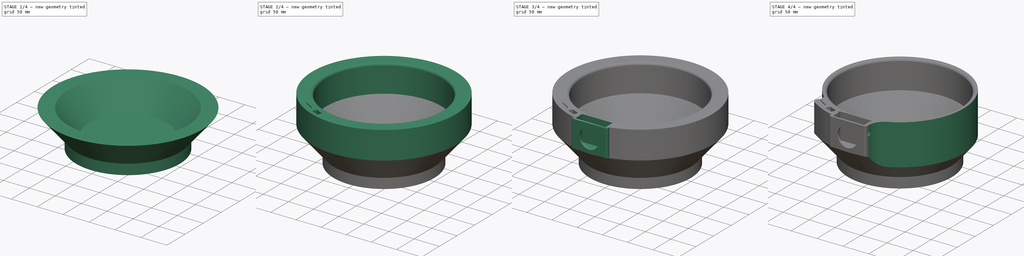
[diagram: build sequence overview — one tinted view per stage of 4, left to right]
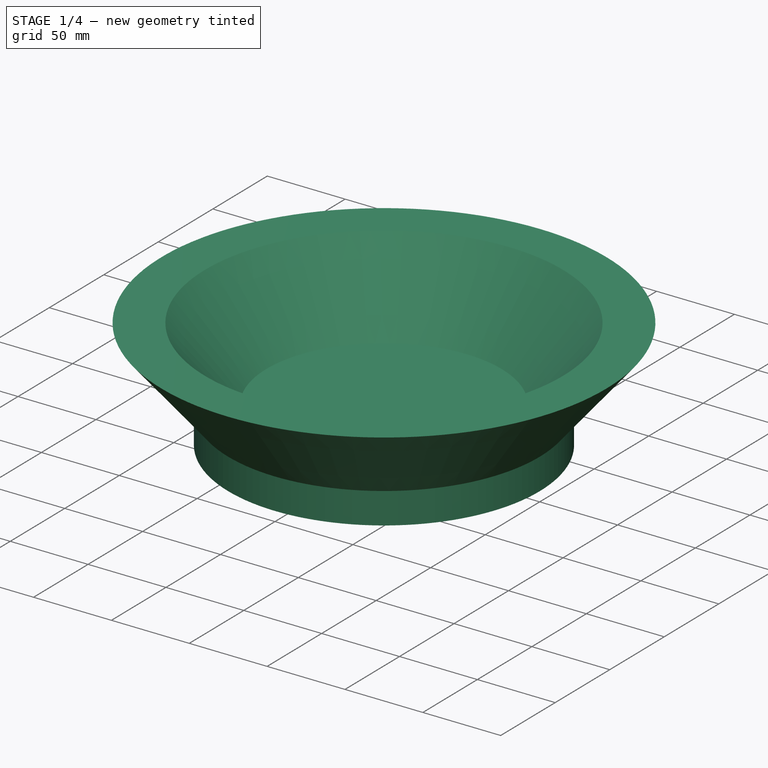
[diagram: stage 1 of 4 — iso view after this stage's code; geometry added in this stage tinted green]
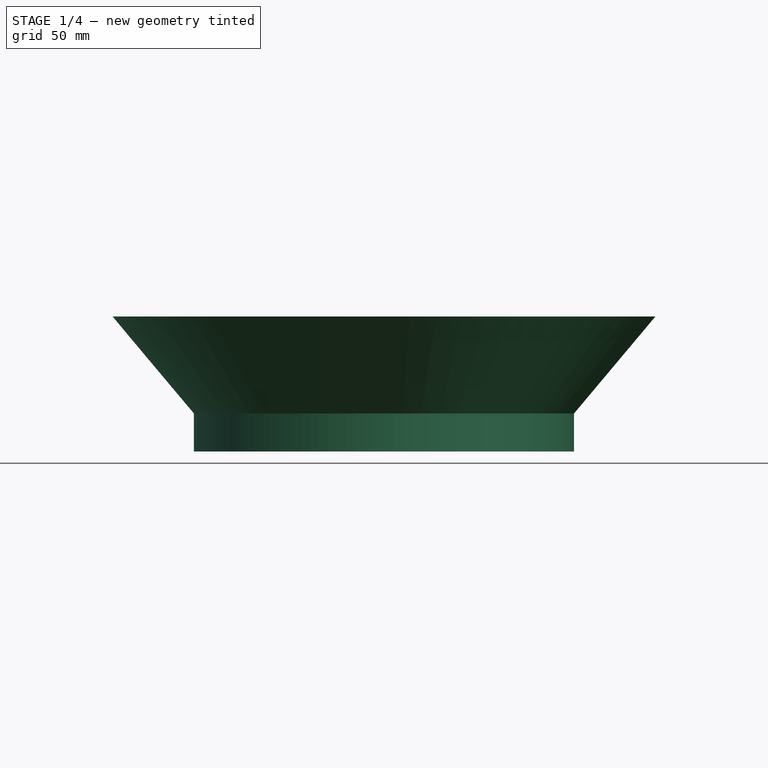
[diagram: stage 1 of 4 — front view after this stage's code; geometry added in this stage tinted green]
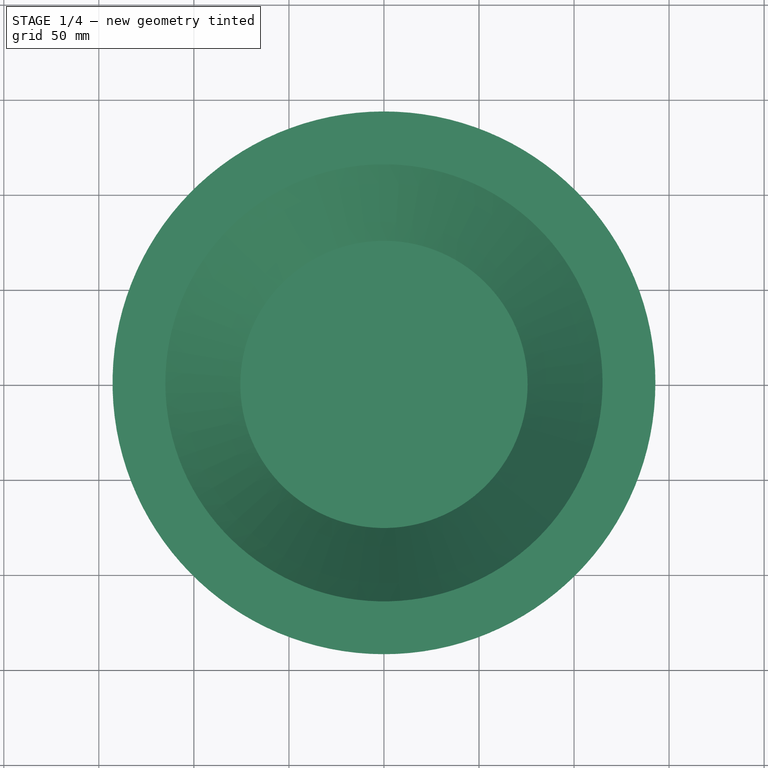
[diagram: stage 1 of 4 — top view after this stage's code; geometry added in this stage tinted green]
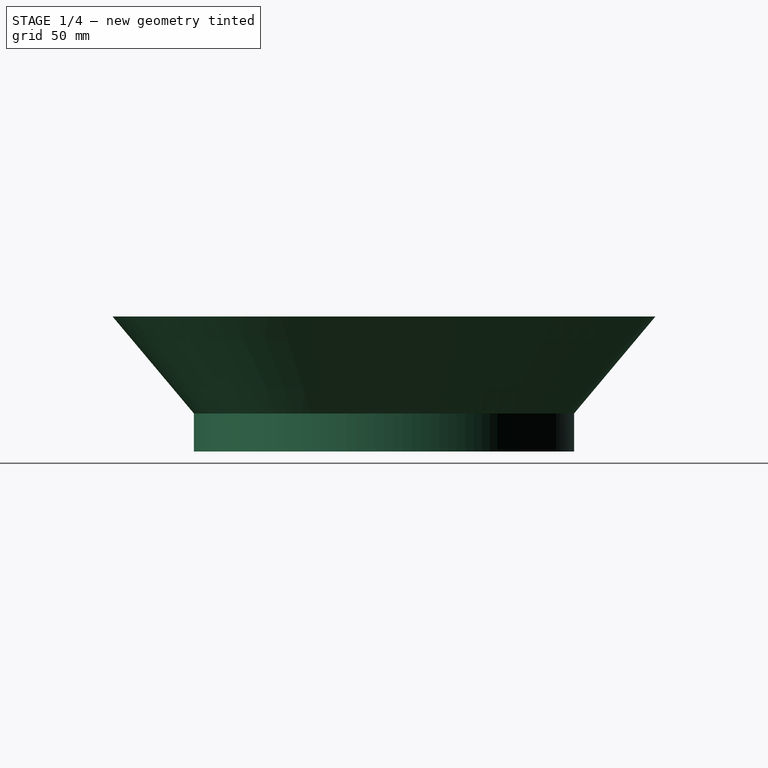
[diagram: stage 1 of 4 — right view after this stage's code; geometry added in this stage tinted green]
FCSTD DOCUMENT  (FreeCAD 1.1R44874 (Git))
Label: Base2
License: Creative Commons Attribution-NonCommercial 4.0
objects: Sketcher::SketchObject×10, PartDesign::Pad×6, PartDesign::Pocket×6, PartDesign::Fillet×1, PartDesign::Hole×1, App::Point×1, PartDesign::Body×1, Measure::MeasureDistance×1, App::DocumentObjectGroup×1
note: 63 computed .brp shape members not serialized (recipe doc carries the construction recipe); baked Part::Feature solids carry a one-line shape summary decoded from their .brp

FEATURE [Sketcher::SketchObject] Sketch
  ArcFitTolerance = 1e-06
  AttachmentSupport = -> [XY_Plane]
  ExternalTypes = [0]
  FullyConstrained = true
  MakeInternals = false
  MapMode = 2
  _ExternalGeoVersion = 0
  sketch-geometry (1):
    g0: Circle CenterX=0 CenterY=0 CenterZ=0 NormalX=0 NormalY=0 NormalZ=1 AngleXU=0 Radius=100
  constraints (2):
    c: Diameter(g0) = 200
    c: Coincident(g0,g-1)
FEATURE [PartDesign::Pad] Pad
  Direction = (0,0,1)
  Length = 20
  Length2 = 10
  Profile = -> Sketch
  ReferenceAxis = -> Sketch [N_Axis]
  Refine = true
  SideType = 0
  Suppressed = false
  Type = 0
  Type2 = 0
FEATURE [PartDesign::Pad] Pad001
  BaseFeature = -> Pad
  Direction = (-100,1.22e-14,0)
  Length = 20
  Length2 = 10
  Profile = -> Pad [Face1]
  Refine = true
  SideType = 0
  Suppressed = false
  Type = 0
  Type2 = 0
FEATURE [PartDesign::Pad] Pad002
  BaseFeature = -> Pad001
  Direction = (0,0,1)
  Length = 51
  Length2 = 10
  Profile = -> Pad001 [Vertex6,Edge6,Vertex5,Edge5,Vertex4,Edge7]
  Refine = true
  SideType = 0
  Suppressed = false
  TaperAngle = 40
  Type = 0
  Type2 = 0
FEATURE [Sketcher::SketchObject] Sketch001
  ArcFitTolerance = 1e-06
  AttachmentSupport = -> [Pad002]
  ExternalTypes = [0]
  FullyConstrained = true
  MakeInternals = false
  MapMode = 5
  Placement = pos=(0,0,71) rot=(0,0,1;0rad)
  _ExternalGeoVersion = 0
  sketch-geometry (1):
    g0: Circle CenterX=0 CenterY=0 CenterZ=0 NormalX=0 NormalY=0 NormalZ=1 AngleXU=0 Radius=115
  constraints (2):
    c: Diameter(g0) = 230
    c: Coincident(g0,g-1)
FEATURE [PartDesign::Pocket] Pocket
  BaseFeature = -> Pad002
  Direction = (0,0,-1)
  Length = 47
  Length2 = 5
  Profile = -> Sketch001
  ReferenceAxis = -> Sketch001 [N_Axis]
  Refine = true
  SideType = 0
  Suppressed = false
  TaperAngle = -40
  Type = 0
  Type2 = 0
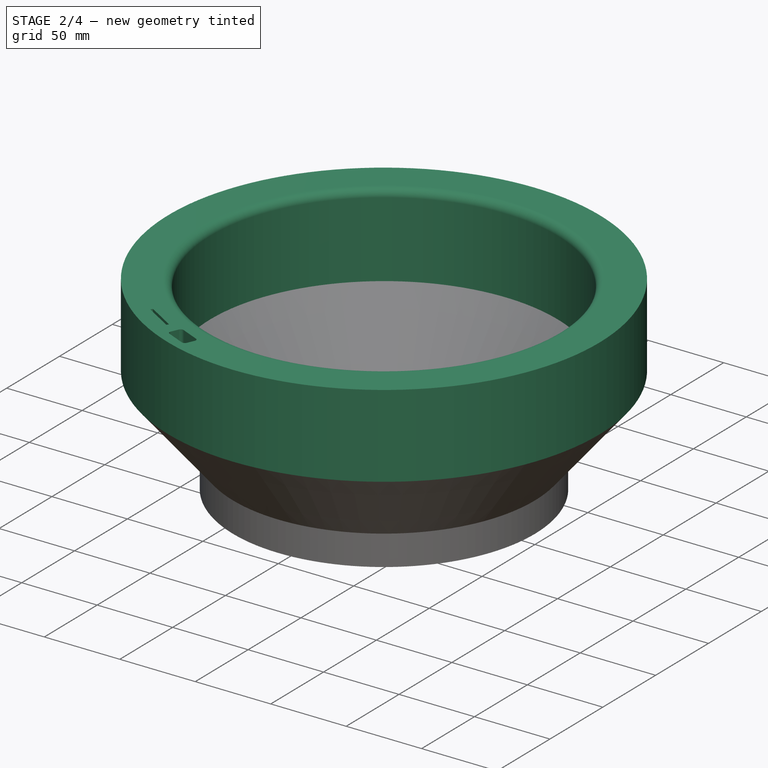
[diagram: stage 2 of 4 — iso view after this stage's code; geometry added in this stage tinted green]
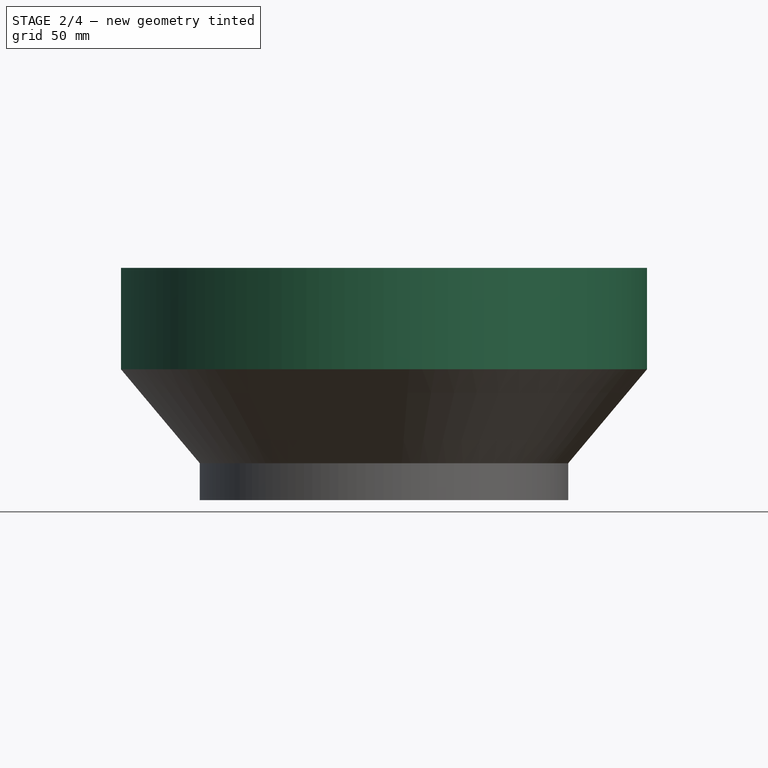
[diagram: stage 2 of 4 — front view after this stage's code; geometry added in this stage tinted green]
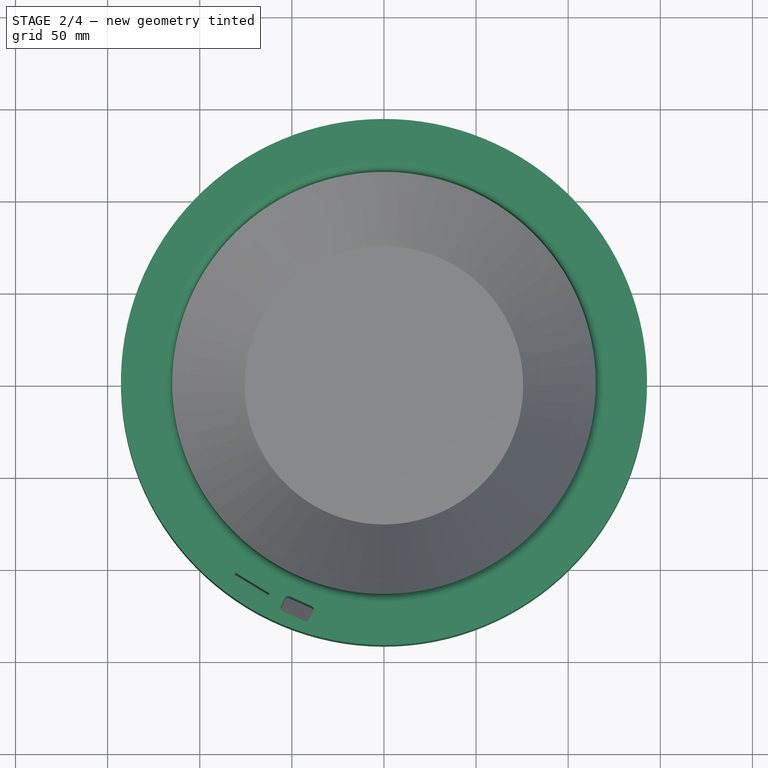
[diagram: stage 2 of 4 — top view after this stage's code; geometry added in this stage tinted green]
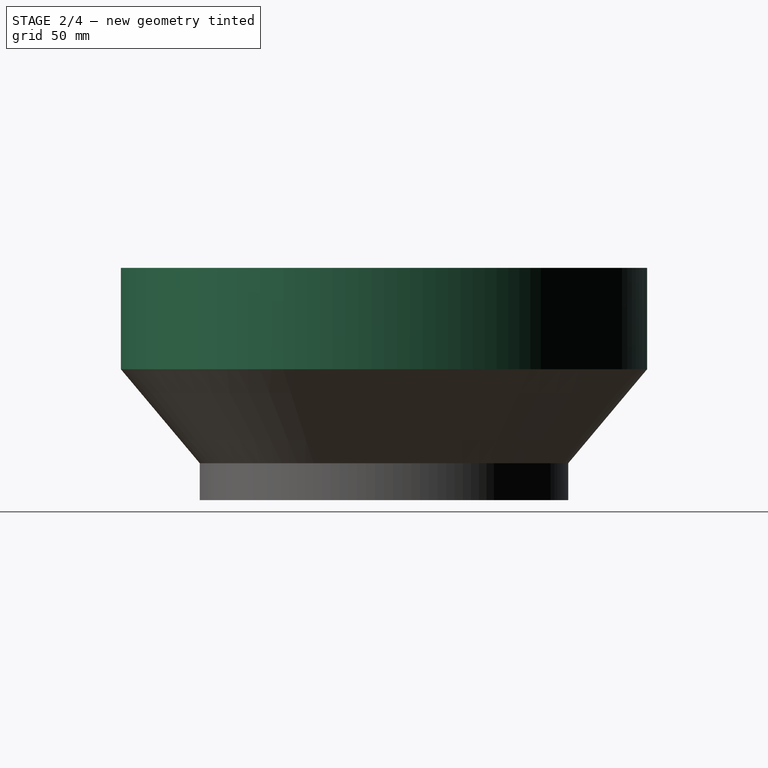
[diagram: stage 2 of 4 — right view after this stage's code; geometry added in this stage tinted green]
FEATURE [PartDesign::Pad] Pad003
  BaseFeature = -> Pocket
  Direction = (0,0,1)
  Length = 55
  Length2 = 10
  Profile = -> Pocket [Face6]
  Refine = true
  SideType = 0
  Suppressed = false
  Type = 0
  Type2 = 0
FEATURE [PartDesign::Fillet] Fillet
  Base = -> Pad003 [Edge18]
  BaseFeature = -> Pad003
  Radius = 5
  Refine = true
  SupportTransform = false
  Suppressed = false
  UseAllEdges = false
FEATURE [Sketcher::SketchObject] Sketch002
  ArcFitTolerance = 1e-06
  AttachmentSupport = -> [Fillet]
  ExternalTypes = [0]
  FullyConstrained = false
  MakeInternals = false
  MapMode = 5
  Placement = pos=(0,0,126) rot=(0,0,1;0rad)
  _ExternalGeoVersion = 0
  sketch-geometry (16):
    g0: LineSegment StartX=-81.3572 StartY=-104.942 StartZ=0 EndX=-62.8823 EndY=-116.133 EndZ=0
    g1: LineSegment StartX=-62.8823 StartY=-116.133 StartZ=0 EndX=-62.0249 EndY=-114.782 EndZ=0
    g2: LineSegment StartX=-62.0249 StartY=-114.782 StartZ=0 EndX=-80.4998 EndY=-103.591 EndZ=0
    g3: LineSegment StartX=-80.4998 StartY=-103.591 StartZ=0 EndX=-81.3572 EndY=-104.942 EndZ=0
    g4: GeomPoint [constr] X=-71.6911 Y=-109.862 Z=0
    g5: LineSegment StartX=-54.8822 StartY=-124.553 StartZ=0 EndX=-43.1209 EndY=-129.756 EndZ=0
    g6: LineSegment StartX=-40.4828 StartY=-128.736 StartZ=0 EndX=-38.4599 EndY=-124.163 EndZ=0
    g7: LineSegment StartX=-39.4798 StartY=-121.525 StartZ=0 EndX=-51.2411 EndY=-116.322 EndZ=0
    g8: LineSegment StartX=-53.8793 StartY=-117.342 StartZ=0 EndX=-55.9021 EndY=-121.915 EndZ=0
    g9: ArcOfCircle CenterX=-54.0731 CenterY=-122.724 CenterZ=0 NormalX=0 NormalY=0 NormalZ=1 AngleXU=0 Radius=2 StartAngle=2.72509 EndAngle=4.29588
    g10: ArcOfCircle CenterX=-42.3118 CenterY=-127.927 CenterZ=0 NormalX=0 NormalY=0 NormalZ=1 AngleXU=0 Radius=2 StartAngle=4.29588 EndAngle=5.86668
    g11: ArcOfCircle CenterX=-40.289 CenterY=-123.354 CenterZ=0 NormalX=0 NormalY=0 NormalZ=1 AngleXU=0 Radius=2 StartAngle=5.86668 EndAngle=7.43748
    g12: ArcOfCircle CenterX=-52.0503 CenterY=-118.151 CenterZ=0 NormalX=0 NormalY=0 NormalZ=1 AngleXU=0 Radius=2 StartAngle=1.15429 EndAngle=2.72509
    g13: GeomPoint [constr] X=-56.7112 Y=-123.744 Z=0
    g14: GeomPoint [constr] X=-41.2919 Y=-130.565 Z=0
    g15: GeomPoint [constr] X=-37.6508 Y=-122.334 Z=0
  constraints (31):
    c: Coincident(g0,g1)
    c: Coincident(g1,g2)
    c: Coincident(g2,g3)
    c: Coincident(g3,g0)
    c: Symmetric(g2,g0,g4)
    c: Distance(g1,g3) = 21.6
    c: Distance(g0,g2) = 1.6
    c: Tangent(g5,g9) = -1.5708
    c: Tangent(g5,g10) = -1.5708
    c: Tangent(g6,g10) = -1.5708
    c: Tangent(g6,g11) = -1.5708
    c: Tangent(g7,g11) = -1.5708
    c: Tangent(g7,g12) = -1.5708
    c: Tangent(g8,g12) = -1.5708
    c: Tangent(g8,g9) = -1.5708
    c: Parallel(g5,g7)
    c: Parallel(g6,g8)
    c: Perpendicular(g5,g6)
    c: Equal(g9,g10)
    c: Equal(g10,g11)
    c: Equal(g11,g12)
    c: PointOnObject(g14,g5)
    c: PointOnObject(g14,g6)
    c: PointOnObject(g13,g5)
    c: PointOnObject(g13,g8)
    c: PointOnObject(g15,g6)
    c: PointOnObject(g15,g7)
    c: Distance(g5,g7) = 9
    c: Radius(g10) = 2
    c: Equal(g3,g1)
    c: Equal(g0,g2)
FEATURE [PartDesign::Pocket] Pocket001
  BaseFeature = -> Fillet
  Direction = (0,0,-1)
  Length = 0
  Length2 = 5
  Offset = -1
  Profile = -> Sketch002
  ReferenceAxis = -> Sketch002 [N_Axis]
  Refine = true
  SideType = 0
  Suppressed = false
  Type = 3
  Type2 = 0
  UpToFace = -> Fillet [Face6]
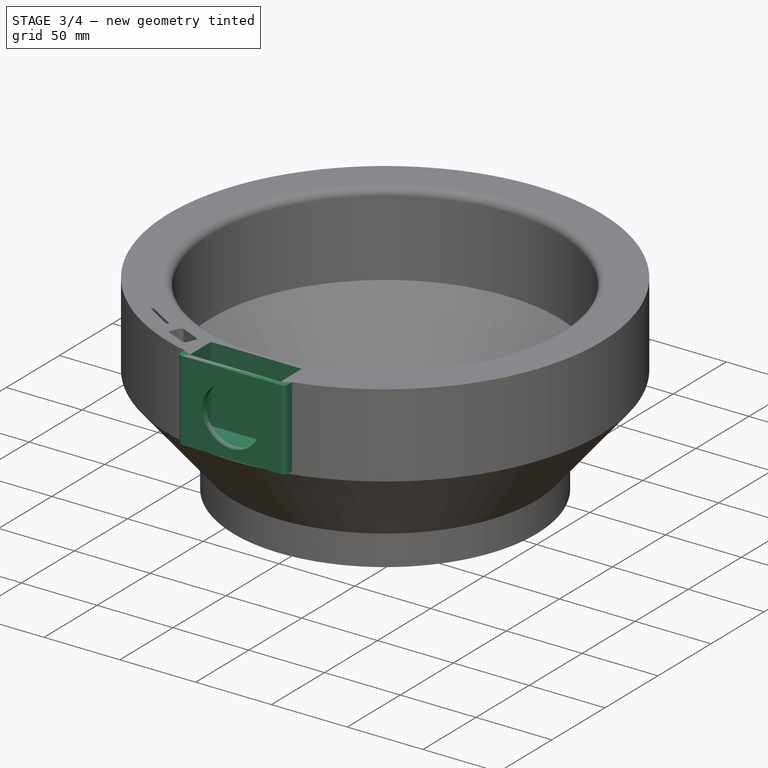
[diagram: stage 3 of 4 — iso view after this stage's code; geometry added in this stage tinted green]
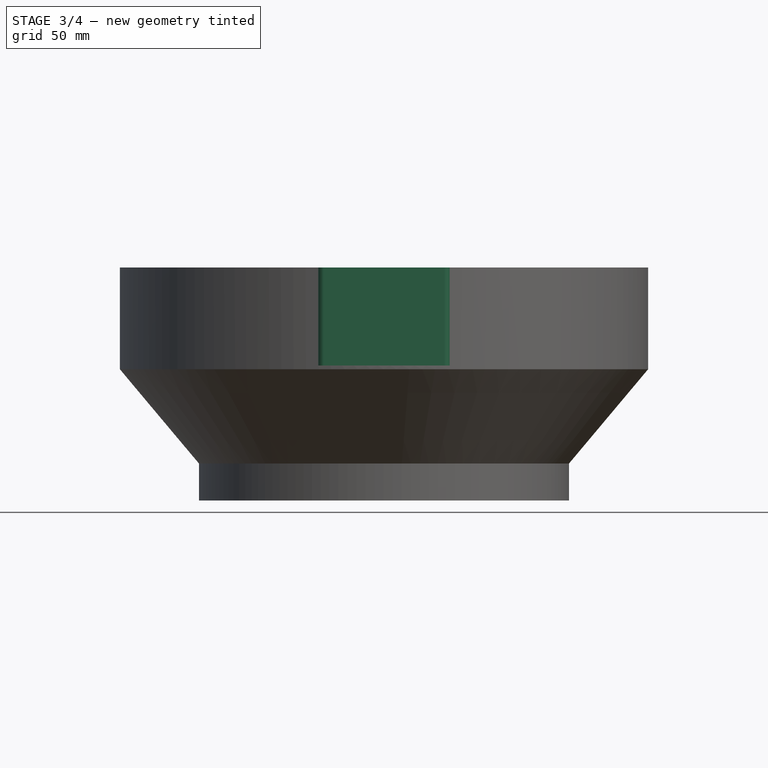
[diagram: stage 3 of 4 — front view after this stage's code; geometry added in this stage tinted green]
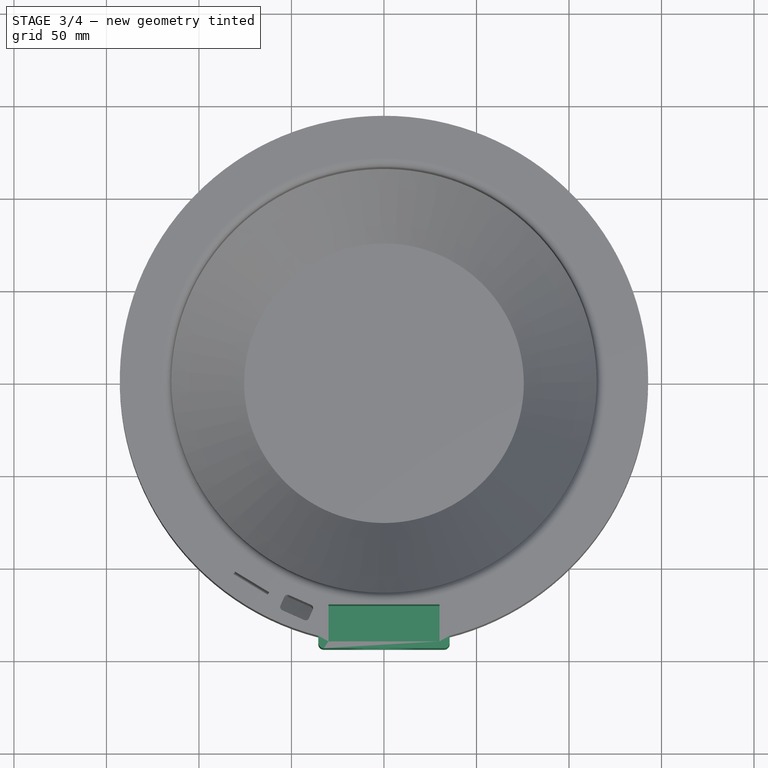
[diagram: stage 3 of 4 — top view after this stage's code; geometry added in this stage tinted green]
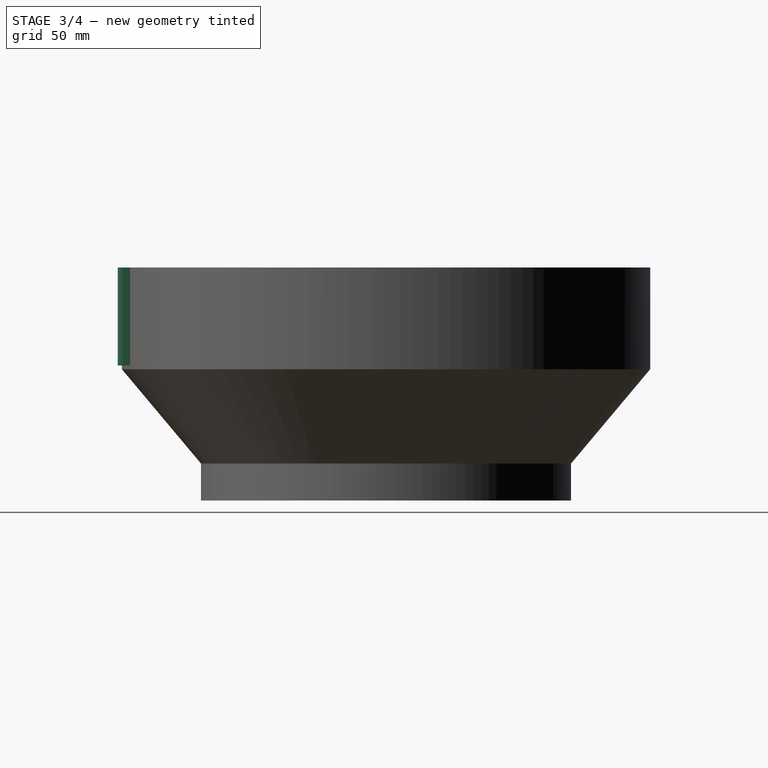
[diagram: stage 3 of 4 — right view after this stage's code; geometry added in this stage tinted green]
FEATURE [Sketcher::SketchObject] Sketch003
  ArcFitTolerance = 1e-06
  AttachmentSupport = -> [Pocket001]
  ExternalTypes = [0]
  FullyConstrained = true
  MakeInternals = false
  MapMode = 5
  Placement = pos=(0,0,126) rot=(0,0,1;0rad)
  _ExternalGeoVersion = 0
  sketch-geometry (11):
    g0: LineSegment StartX=-32.5 StartY=-145 StartZ=0 EndX=32.5 EndY=-145 EndZ=0
    g1: LineSegment StartX=35.5 StartY=-142 StartZ=0 EndX=35.5 EndY=-128 EndZ=0
    g2: LineSegment StartX=32.5 StartY=-125 StartZ=0 EndX=-32.5 EndY=-125 EndZ=0
    g3: LineSegment StartX=-35.5 StartY=-128 StartZ=0 EndX=-35.5 EndY=-142 EndZ=0
    g4: ArcOfCircle CenterX=-32.5 CenterY=-142 CenterZ=0 NormalX=0 NormalY=0 NormalZ=1 AngleXU=0 Radius=3 StartAngle=3.14159 EndAngle=4.71239
    g5: ArcOfCircle CenterX=32.5 CenterY=-142 CenterZ=0 NormalX=0 NormalY=0 NormalZ=1 AngleXU=0 Radius=3 StartAngle=4.71239 EndAngle=6.28319
    g6: ArcOfCircle CenterX=32.5 CenterY=-128 CenterZ=0 NormalX=0 NormalY=0 NormalZ=1 AngleXU=0 Radius=3 StartAngle=3e-16 EndAngle=1.5708
    g7: ArcOfCircle CenterX=-32.5 CenterY=-128 CenterZ=0 NormalX=0 NormalY=0 NormalZ=1 AngleXU=0 Radius=3 StartAngle=1.5708 EndAngle=3.14159
    g8: GeomPoint [constr] X=-35.5 Y=-145 Z=0
    g9: GeomPoint [constr] X=35.5 Y=-125 Z=0
    g10: GeomPoint X=0 Y=-125 Z=0
  constraints (25):
    c: Tangent(g0,g4) = -1.5708
    c: Tangent(g0,g5) = -1.5708
    c: Tangent(g1,g5) = -1.5708
    c: Tangent(g1,g6) = -1.5708
    c: Tangent(g2,g6) = -1.5708
    c: Tangent(g2,g7) = -1.5708
    c: Tangent(g3,g7) = -1.5708
    c: Tangent(g3,g4) = -1.5708
    c: Horizontal(g0)
    c: Horizontal(g2)
    c: Vertical(g1)
    c: Vertical(g3)
    c: Equal(g4,g5)
    c: Equal(g5,g6)
    c: Equal(g6,g7)
    c: PointOnObject(g8,g0)
    c: PointOnObject(g8,g3)
    c: PointOnObject(g9,g1)
    c: PointOnObject(g9,g2)
    c: Distance(g1,g3) = 71
    c: Distance(g0,g2) = 20
    c: Radius(g5) = 3
    c: Symmetric(g2,g2,g10)
    c: PointOnObject(g10,g-2)
    c: DistanceY(g10,g-1) = 125
FEATURE [PartDesign::Pad] Pad004
  BaseFeature = -> Pocket001
  Direction = (0,0,1)
  Length = 53
  Length2 = 10
  Profile = -> Sketch003
  ReferenceAxis = -> Sketch003 [N_Axis]
  Refine = true
  Reversed = true
  SideType = 0
  Suppressed = false
  Type = 0
  Type2 = 0
FEATURE [Sketcher::SketchObject] Sketch004
  ArcFitTolerance = 1e-06
  AttachmentSupport = -> [Pad004]
  ExternalTypes = [0]
  FullyConstrained = false
  MakeInternals = false
  MapMode = 5
  Placement = pos=(0,-145,0) rot=(1,0,0;1.5708rad)
  _ExternalGeoVersion = 0
  sketch-geometry (1):
    g0: Circle CenterX=0 CenterY=98.3273 CenterZ=0 NormalX=0 NormalY=0 NormalZ=1 AngleXU=0 Radius=12.5
  constraints (2):
    c: Diameter(g0) = 25
    c: PointOnObject(g0,g-2)
FEATURE [PartDesign::Hole] Hole
  BaseFeature = -> Pad004
  BaseProfileType = 6
  CustomThreadClearance = 0
  Depth = 20
  DepthType = 0
  Diameter = 38
  DrillForDepth = false
  DrillPoint = 0
  DrillPointAngle = 118
  HoleCutCountersinkAngle = 90
  HoleCutCustomValues = false
  HoleCutDepth = 0
  HoleCutDiameter = 25.1
  HoleCutType = 0
  ModelThread = false
  Profile = -> Sketch004
  Refine = true
  Suppressed = false
  Tapered = false
  TaperedAngle = 90
  ThreadClass = 0
  ThreadDepth = 20
  ThreadDepthType = 0
  ThreadDiameter = 38
  ThreadDirection = 0
  ThreadFit = 0
  ThreadSize = 0
  ThreadType = 0
  Threaded = false
  UseCustomThreadClearance = false
FEATURE [Sketcher::SketchObject] Sketch005
  ArcFitTolerance = 1e-06
  AttachmentSupport = -> [Hole]
  ExternalTypes = [0]
  FullyConstrained = false
  MakeInternals = false
  MapMode = 5
  Placement = pos=(0,0,126) rot=(0,0,1;0rad)
  _ExternalGeoVersion = 0
  sketch-geometry (4):
    g0: LineSegment StartX=-30.0024 StartY=-141.33 StartZ=0 EndX=29.9976 EndY=-141.33 EndZ=0
    g1: LineSegment StartX=29.9976 StartY=-141.33 StartZ=0 EndX=29.9928 EndY=-121.33 EndZ=0
    g2: LineSegment StartX=29.9928 StartY=-121.33 StartZ=0 EndX=-30.0024 EndY=-121.33 EndZ=0
    g3: LineSegment StartX=-30.0024 StartY=-121.33 StartZ=0 EndX=-30.0024 EndY=-141.33 EndZ=0
  constraints (10):
    c: Coincident(g0,g1)
    c: Coincident(g0,g3)
    c: Coincident(g1,g2)
    c: Coincident(g2,g3)
    c: Equal(g3,g1)
    c: DistanceY(g3,g3) = 20
    c: Vertical(g3)
    c: Distance(g1,g3) = 60
    c: Distance(g-1,g2) = 121.33
    c: Horizontal(g0)
FEATURE [PartDesign::Pocket] Pocket002
  BaseFeature = -> Hole
  Direction = (0,0,-1)
  Length = 50
  Length2 = 5
  Profile = -> Sketch005
  ReferenceAxis = -> Sketch005 [N_Axis]
  Refine = true
  SideType = 0
  Suppressed = false
  Type = 0
  Type2 = 0
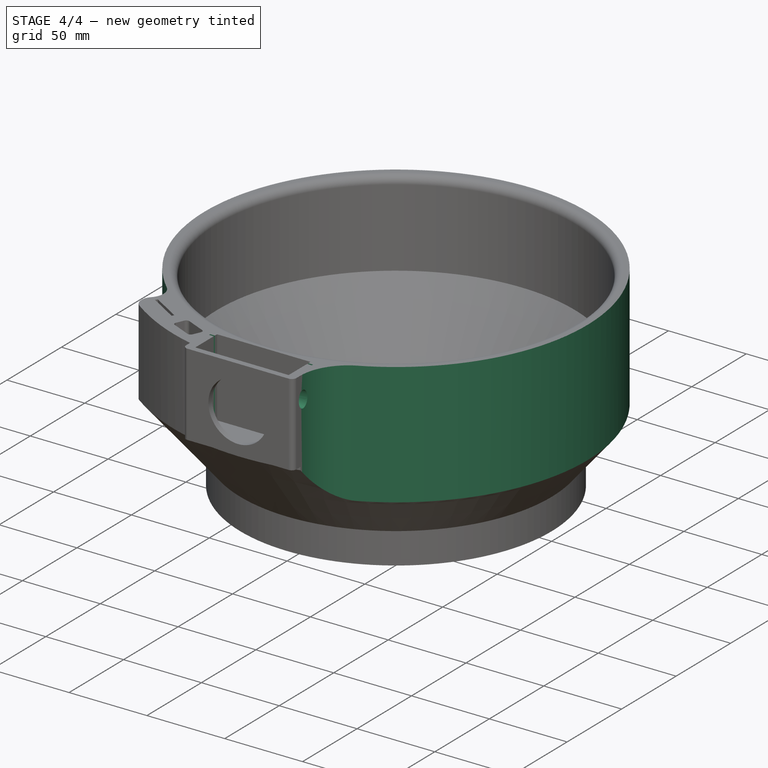
[diagram: stage 4 of 4 — iso view after this stage's code; geometry added in this stage tinted green]
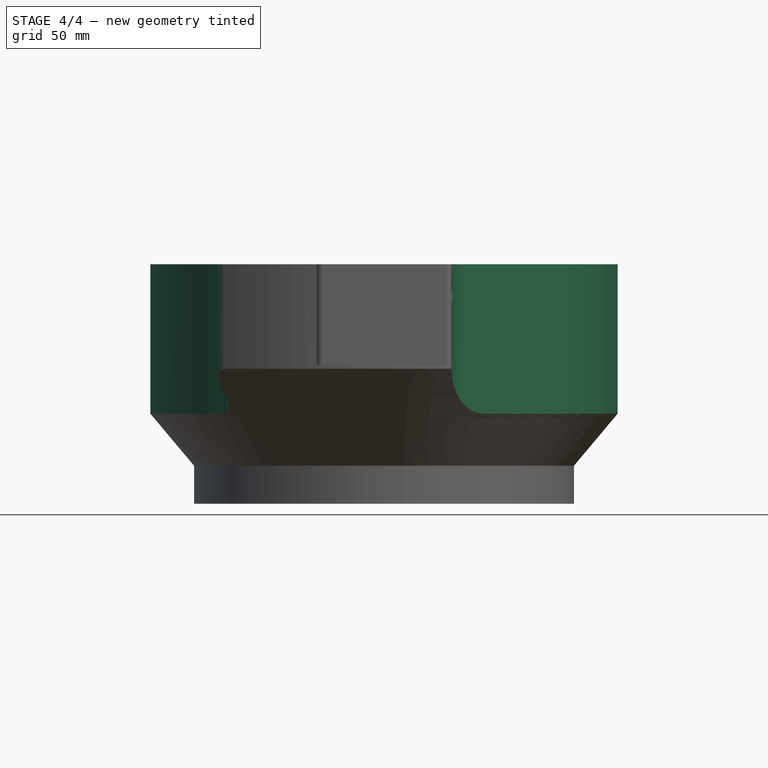
[diagram: stage 4 of 4 — front view after this stage's code; geometry added in this stage tinted green]
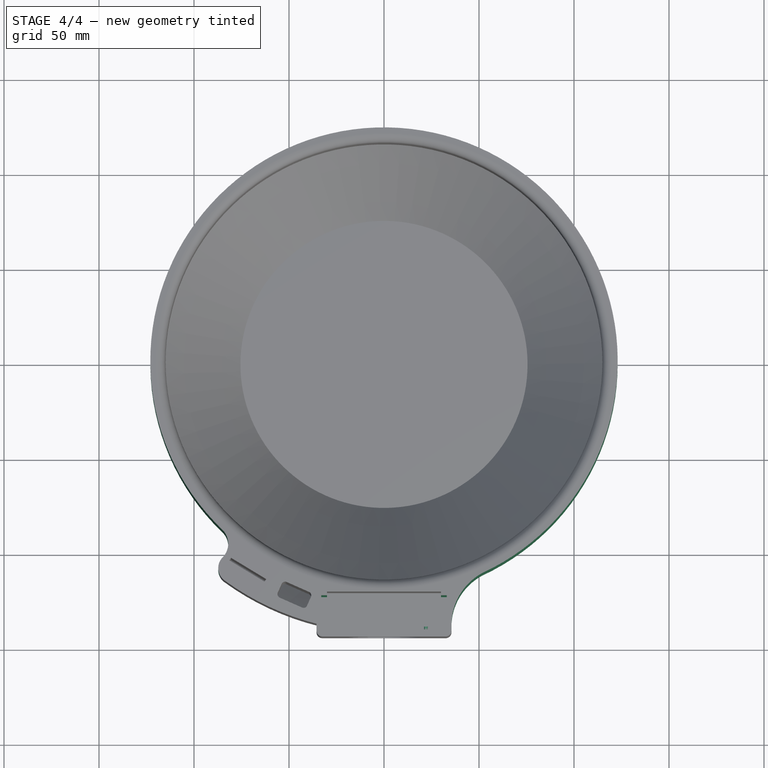
[diagram: stage 4 of 4 — top view after this stage's code; geometry added in this stage tinted green]
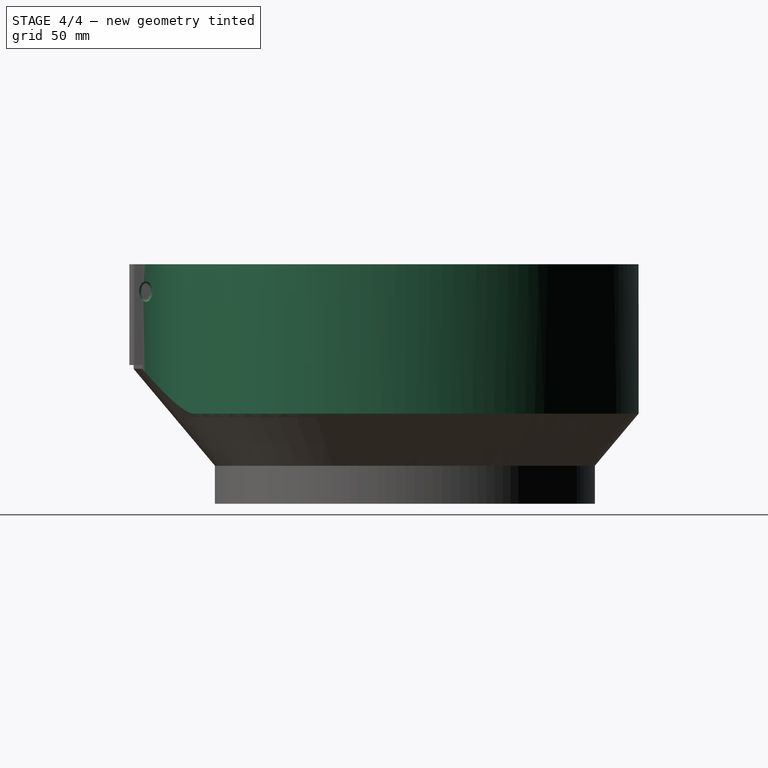
[diagram: stage 4 of 4 — right view after this stage's code; geometry added in this stage tinted green]
FEATURE [Sketcher::SketchObject] Sketch006
  ArcFitTolerance = 1e-06
  AttachmentSupport = -> [Pocket002]
  ExternalTypes = [0]
  FullyConstrained = false
  MakeInternals = false
  MapMode = 5
  Placement = pos=(29.9635,0.0072459,0) rot=(0.577443,-0.577304,-0.577304;2.09425rad)
  _ExternalGeoVersion = 0
  sketch-geometry (5):
    g0: Ellipse CenterX=136.43 CenterY=111.609 CenterZ=0 NormalX=0 NormalY=0 NormalZ=1 MajorRadius=4.39062 MinorRadius=2.5 AngleXU=1.5708
    g1: LineSegment [constr] StartX=136.43 StartY=116 StartZ=0 EndX=136.43 EndY=107.219 EndZ=0
    g2: LineSegment [constr] StartX=133.93 StartY=111.609 StartZ=0 EndX=138.93 EndY=111.609 EndZ=0
    g3: GeomPoint [constr] X=136.43 Y=115.219 Z=0
    g4: GeomPoint [constr] X=136.43 Y=108 Z=0
  constraints (4):
    c: InternalAlignment(g1-g4 -> g0) x4
    c: Horizontal(g2)
    c: DistanceX(g2,g2) = 5
    c: DistanceY(g4,g1) = 8
FEATURE [PartDesign::Pocket] Pocket003
  BaseFeature = -> Pocket002
  Direction = (1,0.000241824,2e-16)
  Length = 50
  Length2 = 5
  Profile = -> Sketch006
  ReferenceAxis = -> Sketch006 [N_Axis]
  Refine = true
  SideType = 0
  Suppressed = false
  TaperAngle = 10
  Type = 0
  Type2 = 0
FEATURE [Sketcher::SketchObject] Sketch007
  ArcFitTolerance = 1e-06
  AttachmentSupport = -> [Pocket003]
  ExternalGeometry = -> [Sketch004,Pocket003]
  ExternalTypes = [0]
  FullyConstrained = true
  MakeInternals = false
  MapMode = 5
  Placement = pos=(0,-141.33,0) rot=(0,0.707107,0.707107;3.14159rad)
  _ExternalGeoVersion = 0
  sketch-geometry (13):
    g0: LineSegment [constr] StartX=-27.5454 StartY=86.8273 StartZ=0 EndX=-16.5454 EndY=86.8273 EndZ=0
    g1: LineSegment [constr] StartX=-16.5454 StartY=86.8273 StartZ=0 EndX=-16.5454 EndY=109.827 EndZ=0
    g2: LineSegment [constr] StartX=-16.5454 StartY=109.827 StartZ=0 EndX=-27.5454 EndY=109.827 EndZ=0
    g3: LineSegment [constr] StartX=-27.5454 StartY=109.827 StartZ=0 EndX=-27.5454 EndY=86.8273 EndZ=0
    g4: GeomPoint [constr] X=-22.0454 Y=98.3273 Z=0
    g5: ArcOfCircle [constr] CenterX=-16.5454 CenterY=112.827 CenterZ=0 NormalX=0 NormalY=0 NormalZ=1 AngleXU=0 Radius=3 StartAngle=4.71239 EndAngle=5.56358
    g6: ArcOfCircle [constr] CenterX=-16.5454 CenterY=83.8273 CenterZ=0 NormalX=0 NormalY=0 NormalZ=1 AngleXU=0 Radius=3 StartAngle=0.719609 EndAngle=1.5708
    g7: Circle CenterX=-22.0454 CenterY=107.877 CenterZ=0 NormalX=0 NormalY=0 NormalZ=1 AngleXU=0 Radius=0.97
    g8: Circle CenterX=-22.0454 CenterY=88.7773 CenterZ=0 NormalX=0 NormalY=0 NormalZ=1 AngleXU=0 Radius=0.97
    g9: GeomPoint [constr] X=-22.0454 Y=86.8273 Z=0
    g10: GeomPoint [constr] X=-22.0454 Y=109.827 Z=0
    g11: LineSegment [constr] StartX=-22.0454 StartY=88.7773 StartZ=0 EndX=-22.0454 EndY=86.8273 EndZ=0
    g12: LineSegment [constr] StartX=-22.0454 StartY=109.827 StartZ=0 EndX=-22.0454 EndY=107.877 EndZ=0
  constraints (32):
    c: Coincident(g0,g1)
    c: Coincident(g1,g2)
    c: Coincident(g2,g3)
    c: Coincident(g3,g0)
    c: Horizontal(g0)
    c: Horizontal(g2)
    c: Vertical(g1)
    c: Vertical(g3)
    c: Symmetric(g2,g0,g4)
    c: Distance(g1,g3) = 11
    c: Distance(g0,g2) = 23
    c: Coincident(g5,g1)
    c: Tangent(g5,g-4) = 1.5708
    c: Distance(g-4,g-5) = 22.3273
    c: Distance(g4,g-5) = 22.3273
    c: Coincident(g6,g0)
    c: Tangent(g6,g-4) = 1.5708
    c: Radius(g5) = 3
    c: Tangent(g5,g2)
    c: Equal(g6,g5)
    c: Diameter(g7) = 1.94
    c: Diameter(g8) = 1.94
    c: Symmetric(g0,g0,g9)
    c: Symmetric(g2,g2,g10)
    c: Coincident(g11,g8)
    c: Coincident(g11,g9)
    c: Vertical(g11)
    c: Coincident(g12,g10)
    c: Coincident(g12,g7)
    c: Vertical(g12)
    c: Distance(g10,g7) = 0.98
    c: Distance(g9,g8) = 0.98
FEATURE [PartDesign::Pad] Pad005
  BaseFeature = -> Pocket003
  Direction = (0,1,-2e-16)
  Length = 1.8
  Length2 = 10
  Profile = -> Sketch007
  ReferenceAxis = -> Sketch007 [N_Axis]
  Refine = true
  SideType = 0
  Suppressed = false
  Type = 0
  Type2 = 0
FEATURE [Sketcher::SketchObject] Sketch008
  ArcFitTolerance = 1e-06
  AttachmentSupport = -> [Pad005]
  ExternalGeometry = -> [Pad005]
  ExternalTypes = [0]
  FullyConstrained = true
  MakeInternals = false
  MapMode = 5
  Placement = pos=(0,0,76) rot=(0,0,1;0rad)
  _ExternalGeoVersion = 0
  sketch-geometry (4):
    g0: LineSegment StartX=-33 StartY=-123.33 StartZ=0 EndX=-33 EndY=-124.38 EndZ=0
    g1: LineSegment StartX=-33 StartY=-124.38 StartZ=0 EndX=33 EndY=-124.38 EndZ=0
    g2: LineSegment StartX=33 StartY=-124.38 StartZ=0 EndX=33 EndY=-123.33 EndZ=0
    g3: LineSegment StartX=33 StartY=-123.33 StartZ=0 EndX=-33 EndY=-123.33 EndZ=0
  constraints (11):
    c: Coincident(g0,g1)
    c: Coincident(g1,g2)
    c: Coincident(g2,g3)
    c: Coincident(g3,g0)
    c: Vertical(g0)
    c: Vertical(g2)
    c: Horizontal(g1)
    c: Distance(g1,g3) = 1.05
    c: DistanceX(g1,g1) = 66
    c: Symmetric(g0,g2,g-2)
    c: Distance(g-5,g3) = 2
FEATURE [PartDesign::Pocket] Pocket004
  BaseFeature = -> Pad005
  Direction = (0,0,-1)
  Length = 5
  Length2 = 5
  Profile = -> Sketch008
  ReferenceAxis = -> Sketch008 [N_Axis]
  Refine = true
  Reversed = true
  SideType = 0
  Suppressed = false
  Type = 1
  Type2 = 0
FEATURE [App::Point] Origin001  label="Origin"
  Role = Origin
FEATURE [Sketcher::SketchObject] Sketch009
  ArcFitTolerance = 1e-06
  AttachmentSupport = -> [Pocket004]
  ExternalGeometry = -> [Pocket004]
  ExternalTypes = [0,0,0,0]
  FullyConstrained = false
  MakeInternals = false
  MapMode = 5
  Placement = pos=(0,0,126) rot=(0,0,1;0rad)
  _ExternalGeoVersion = 1
  sketch-geometry (5):
    g0: ArcOfCircle CenterX=0 CenterY=0 CenterZ=0 NormalX=0 NormalY=0 NormalZ=1 AngleXU=0 Radius=123 StartAngle=5.14598 EndAngle=10.2309
    g1: ArcOfCircle CenterX=66.7067 CenterY=-138.975 CenterZ=0 NormalX=0 NormalY=0 NormalZ=1 AngleXU=0 Radius=31.2137 StartAngle=2.07319 EndAngle=3.12033
    g2: ArcOfCircle CenterX=-92.2647 CenterY=-96.1648 CenterZ=0 NormalX=0 NormalY=0 NormalZ=1 AngleXU=0 Radius=10.2683 StartAngle=5.50802 EndAngle=7.08928
    g3: ArcOfCircle CenterX=-79.1593 CenterY=-109.005 CenterZ=0 NormalX=0 NormalY=0 NormalZ=1 AngleXU=0 Radius=8.07873 StartAngle=2.36642 EndAngle=4.08429
    g4: ArcOfCircle CenterX=0 CenterY=0 CenterZ=0 NormalX=0 NormalY=0 NormalZ=1 AngleXU=0 Radius=142.794 StartAngle=4.96363 EndAngle=10.3675
  constraints (11):
    c: Coincident(g1,g-5)
    c: PointOnObject(g1,g0)
    c: Diameter(g0) = 246
    c: Coincident(g2,g0)
    c: PointOnObject(g0,g1)
    c: Coincident(g0,g-5)
    c: Coincident(g4,g0)
    c: Coincident(g4,g1)
    c: Tangent(g0,g2,g0) = 1.5708
    c: Tangent(g3,g2) = 1.5708
    c: Tangent(g3,g4) = -1.5708
FEATURE [PartDesign::Pocket] Pocket005
  BaseFeature = -> Pocket004
  Direction = (0,0,-1)
  Length = 90
  Length2 = 5
  Profile = -> Sketch009
  ReferenceAxis = -> Sketch009 [N_Axis]
  Refine = true
  SideType = 0
  Suppressed = false
  Type = 0
  Type2 = 0
FEATURE [PartDesign::Body] Body
  AllowCompound = false
  Group = -> [Sketch,Pad,Pad001,Pad002,Sketch001,Pocket,Pad003,Fillet,Sketch002,Pocket001,Sketch003,Pad004,Sketch004,Hole,Sketch005,Pocket002,Sketch006,Pocket003,Sketch007,Pad005,Sketch008,Pocket004,Sketch009,Pocket005]
  Origin = -> Origin
  Tip = -> Pocket005
FEATURE [Measure::MeasureDistance] Distance  label="Distance: 9.00 mm"
  Distance = 9
  DistanceX = 3.64109
  DistanceY = 8.23058
  DistanceZ = 0
  Element1 = -> Body [Pad005.Edge49]
  Element2 = -> Body [Pad005.Edge42]
  Position1 = (-39.4798,-121.525,126)
  Position2 = (-43.1209,-129.756,126)
FEATURE [App::DocumentObjectGroup] Measurements
  Group = -> [Distance]
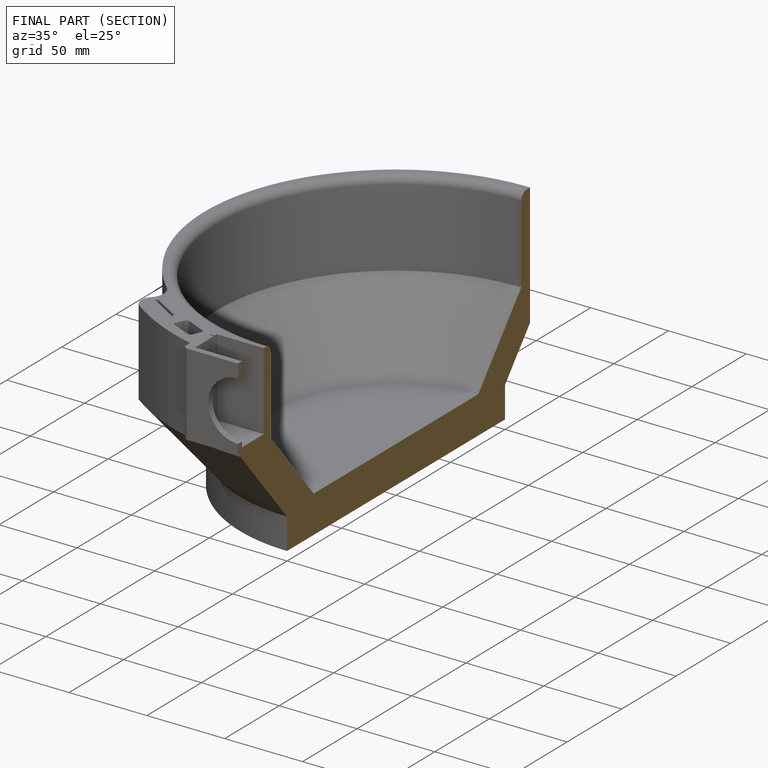
[diagram: finished part — half-section view (interior)]
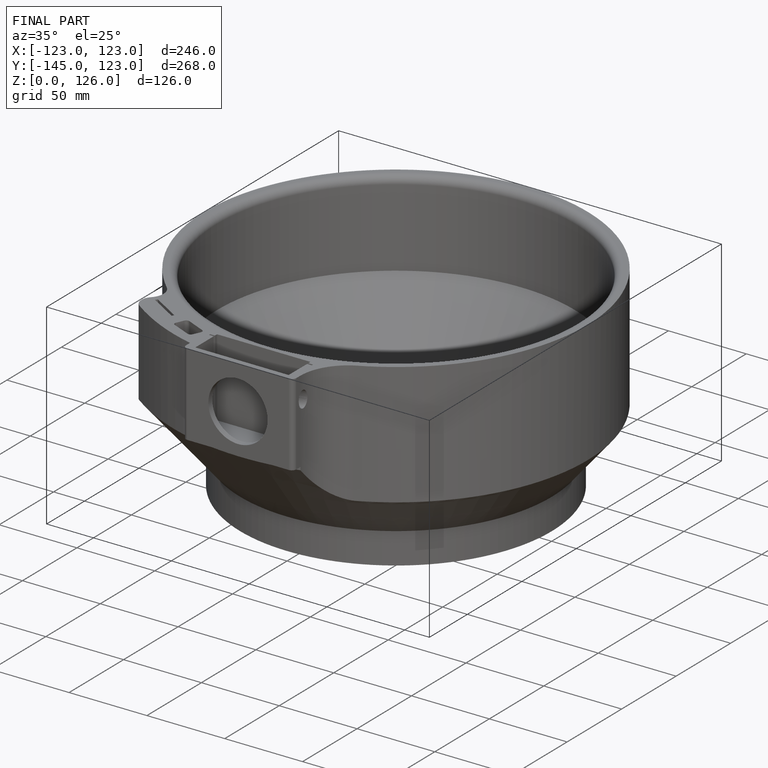
[diagram: finished part — iso view with bounding-box wireframe]
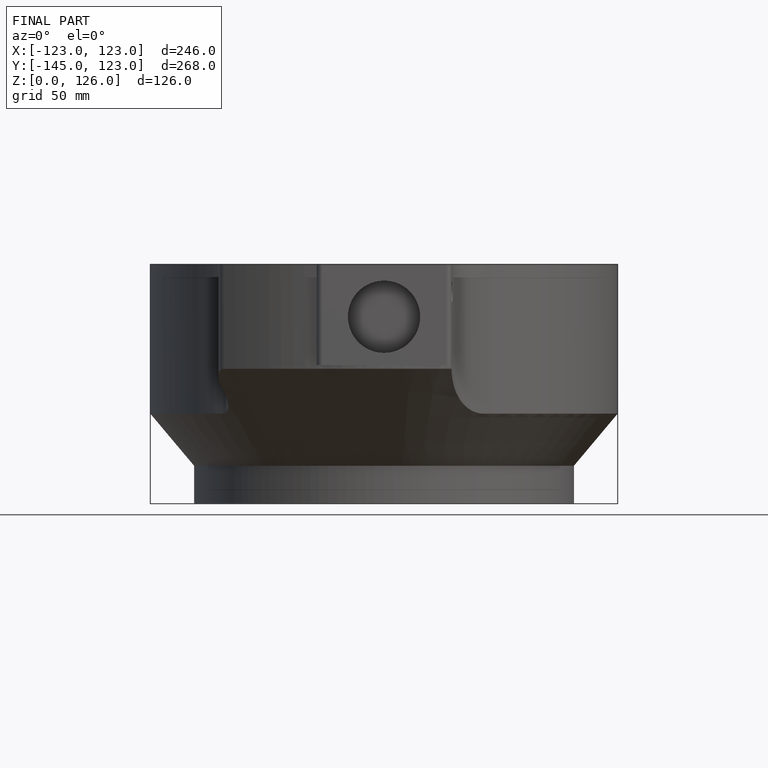
[diagram: finished part — front view with bounding-box wireframe]
